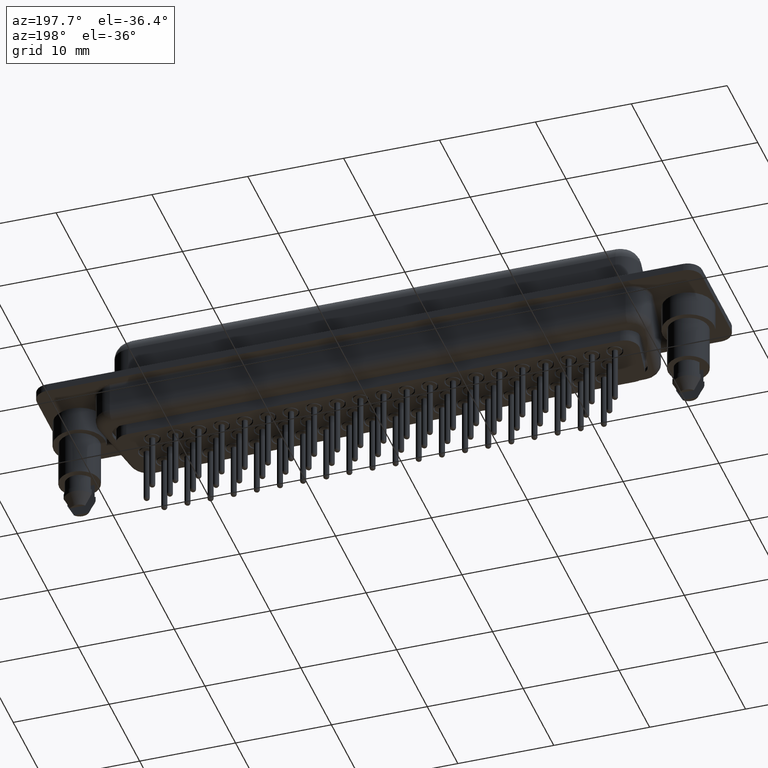
[diagram: clean part render]
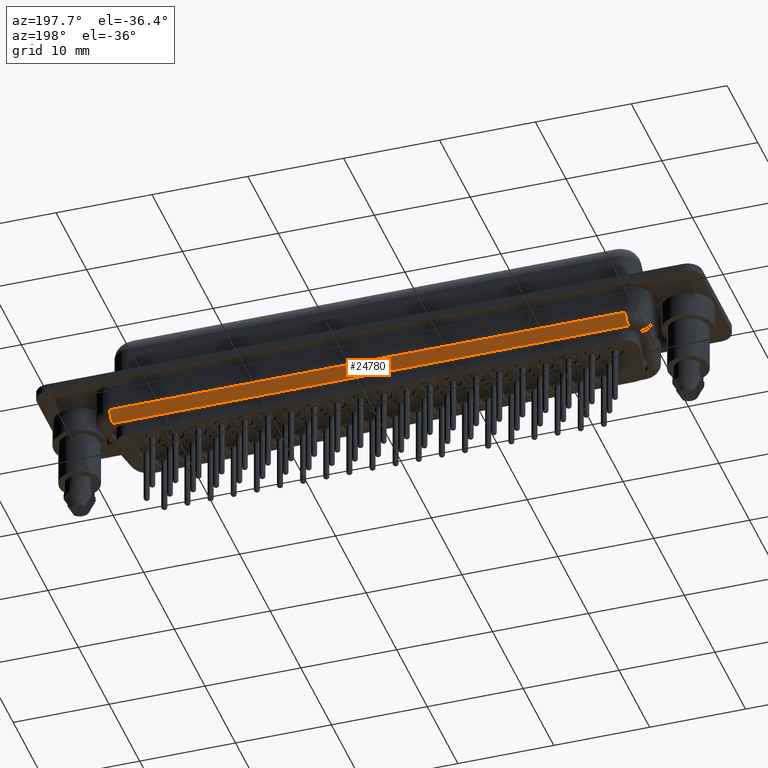
[diagram: same view with one face highlighted and labeled with its STEP entity id]
A machine part, auxiliary view. The second image highlights one B-rep face of the part: STEP entity #24780.
In plain terms, the highlighted cylindrical surface (edge-blend (fillet) strip) has radius 1 mm, axis along (1, 0, 0).
Its self-contained STEP definition (entity closure, byte-faithful):
#1248 = CARTESIAN_POINT ( 'NONE',  ( 58.64999999999999147, 4.350000000000007638, -4.500000000000000000 ) ) ;
#1262 = AXIS2_PLACEMENT_3D ( 'NONE', #6270, #5877, #11561 ) ;
#1598 = DIRECTION ( 'NONE',  ( 1.000000000000000000, 3.224393078023805991E-17, 0.0000000000000000000 ) ) ;
#2941 = ORIENTED_EDGE ( 'NONE', *, *, #28091, .F. ) ;
#3375 = DIRECTION ( 'NONE',  ( -1.000000000000000000, 0.0000000000000000000, -0.0000000000000000000 ) ) ;
#4582 = CIRCLE ( 'NONE', #25240, 1.000000000000000000 ) ;
#4942 = LINE ( 'NONE', #8270, #23670 ) ;
#5877 = DIRECTION ( 'NONE',  ( -1.000000000000000000, 0.0000000000000000000, 0.0000000000000000000 ) ) ;
#6270 = CARTESIAN_POINT ( 'NONE',  ( 4.850000000000006750, 4.350000000000005862, -3.499999999999999556 ) ) ;
#6386 = CARTESIAN_POINT ( 'NONE',  ( 6.031390770746678953, 4.350000000000005862, -3.499999999999999556 ) ) ;
#7074 = ORIENTED_EDGE ( 'NONE', *, *, #25921, .F. ) ;
#8106 = CARTESIAN_POINT ( 'NONE',  ( 4.850000000000006750, 4.350000000000005862, -4.500000000000000000 ) ) ;
#8270 = CARTESIAN_POINT ( 'NONE',  ( 6.031390770746678953, 4.350000000000005862, -4.500000000000000000 ) ) ;
#8554 = VECTOR ( 'NONE', #14976, 1000.000000000000000 ) ;
#9327 = CYLINDRICAL_SURFACE ( 'NONE', #23738, 1.000000000000000000 ) ;
#9505 = DIRECTION ( 'NONE',  ( 1.000000000000000000, 3.224393078023805991E-17, 0.0000000000000000000 ) ) ;
#9918 = EDGE_CURVE ( 'NONE', #36099, #19975, #26521, .T. ) ;
#11561 = DIRECTION ( 'NONE',  ( 0.0000000000000000000, 0.0000000000000000000, 1.000000000000000000 ) ) ;
#12064 = CARTESIAN_POINT ( 'NONE',  ( 4.850000000000006750, 5.350000000000005862, -3.499999999999999556 ) ) ;
#14976 = DIRECTION ( 'NONE',  ( -1.000000000000000000, -3.224393078023805991E-17, -0.0000000000000000000 ) ) ;
#19403 = CARTESIAN_POINT ( 'NONE',  ( 58.64999999999999147, 5.350000000000007638, -3.499999999999999556 ) ) ;
#19975 = VERTEX_POINT ( 'NONE', #12064 ) ;
#21263 = EDGE_LOOP ( 'NONE', ( #35120, #7074, #2941, #29639 ) ) ;
#21669 = DIRECTION ( 'NONE',  ( 0.0000000000000000000, 1.000000000000000000, 0.0000000000000000000 ) ) ;
#21941 = CIRCLE ( 'NONE', #1262, 1.000000000000000000 ) ;
#23670 = VECTOR ( 'NONE', #1598, 1000.000000000000000 ) ;
#23738 = AXIS2_PLACEMENT_3D ( 'NONE', #6386, #9505, #21669 ) ;
#23990 = CARTESIAN_POINT ( 'NONE',  ( 58.64999999999999147, 5.350000000000007638, -3.499999999999999556 ) ) ;
#24524 = CARTESIAN_POINT ( 'NONE',  ( 58.64999999999999147, 4.350000000000004086, -3.499999999999999556 ) ) ;
#24780 = ADVANCED_FACE ( 'NONE', ( #29282 ), #9327, .T. ) ;
#24909 = VERTEX_POINT ( 'NONE', #8106 ) ;
#25240 = AXIS2_PLACEMENT_3D ( 'NONE', #24524, #3375, #30575 ) ;
#25921 = EDGE_CURVE ( 'NONE', #24909, #36914, #4942, .T. ) ;
#26521 = LINE ( 'NONE', #23990, #8554 ) ;
#28091 = EDGE_CURVE ( 'NONE', #19975, #24909, #21941, .T. ) ;
#29282 = FACE_OUTER_BOUND ( 'NONE', #21263, .T. ) ;
#29639 = ORIENTED_EDGE ( 'NONE', *, *, #9918, .F. ) ;
#30575 = DIRECTION ( 'NONE',  ( 0.0000000000000000000, 0.0000000000000000000, 1.000000000000000000 ) ) ;
#32355 = EDGE_CURVE ( 'NONE', #36099, #36914, #4582, .T. ) ;
#35120 = ORIENTED_EDGE ( 'NONE', *, *, #32355, .T. ) ;
#36099 = VERTEX_POINT ( 'NONE', #19403 ) ;
#36914 = VERTEX_POINT ( 'NONE', #1248 ) ;